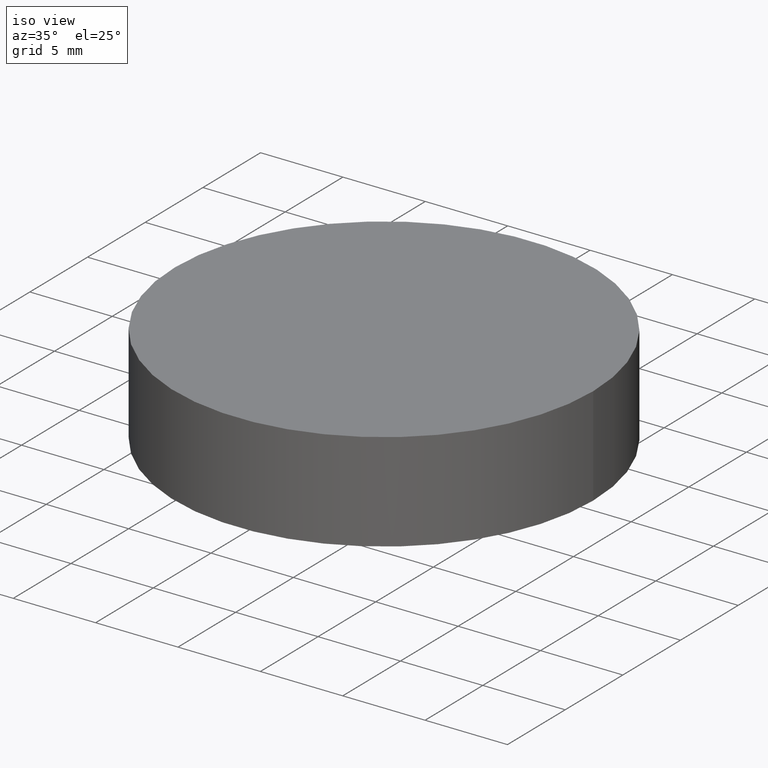
[diagram: clean part render]
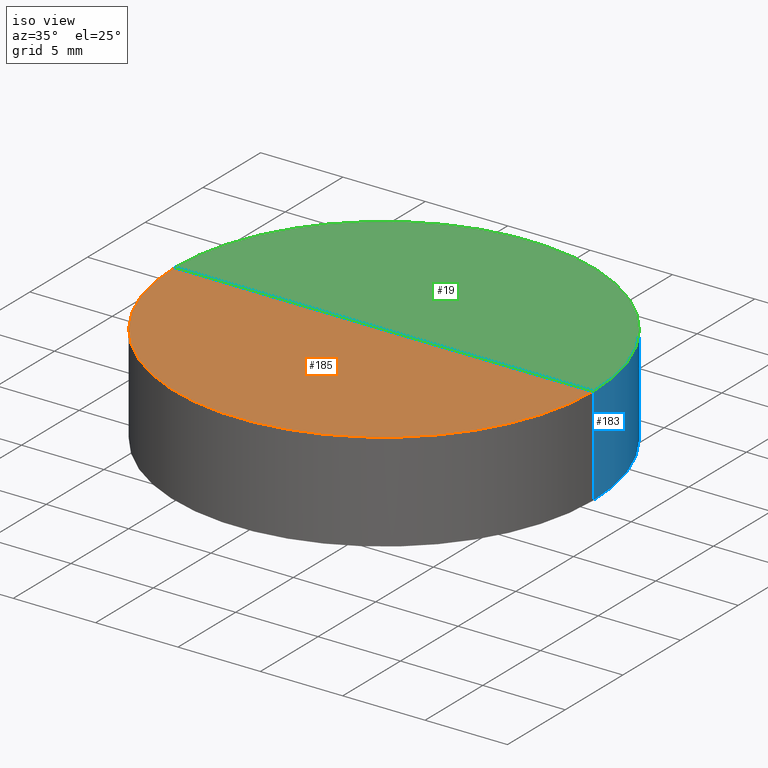
[diagram: same view with three faces highlighted in distinct colors, each labeled with its STEP entity id]
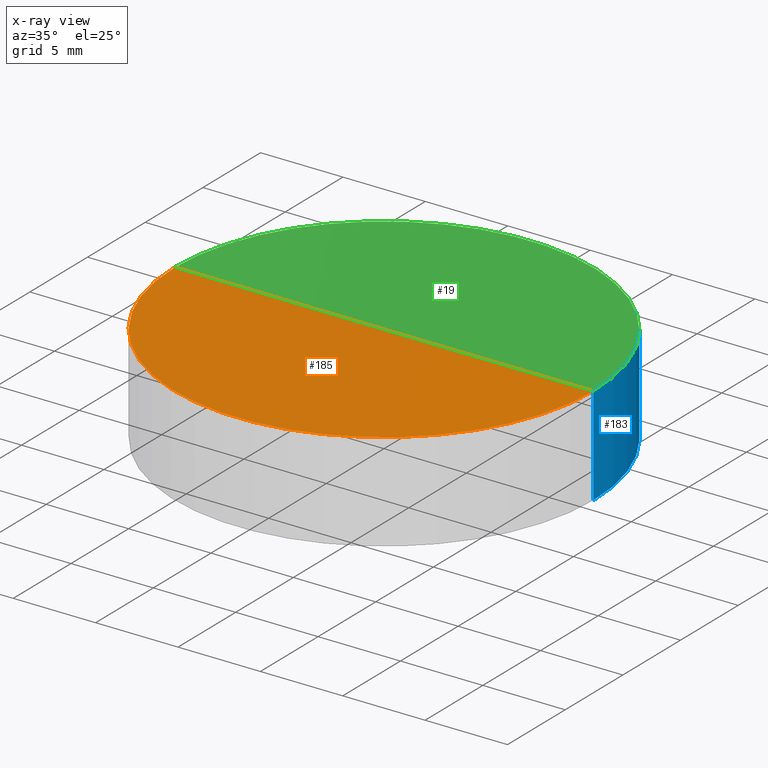
[diagram: x-ray of the same camera — body ghosted, the three highlighted faces saturated]
A machine part, iso view with three faces highlighted in distinct colors.
The next image is the same camera in x-ray (body ghosted, the three faces saturated) — at least one of them is partly hidden behind the body in this view.
Their STEP definitions:

[orange] entity #185 — the highlighted spherical surface has radius 5000 mm.
#1 = CARTESIAN_POINT ( 'NONE',  ( -12.69999999990683293, 0.000000000000000000, 6.000000000000227374 ) ) ;
#16 = DIRECTION ( 'NONE',  ( 0.000000000000000000, 0.000000000000000000, 1.000000000000000000 ) ) ;
#21 = FACE_OUTER_BOUND ( 'NONE', #98, .T. ) ;
#31 = AXIS2_PLACEMENT_3D ( 'NONE', #127, #164, #147 ) ;
#46 = ORIENTED_EDGE ( 'NONE', *, *, #86, .F. ) ;
#47 = DIRECTION ( 'NONE',  ( 1.000000000000000000, 1.224646799147353207E-16, 0.000000000000000000 ) ) ;
#59 = SPHERICAL_SURFACE ( 'NONE', #194, 5000.000000000000000 ) ;
#69 = EDGE_CURVE ( 'NONE', #141, #129, #173, .T. ) ;
#72 = DIRECTION ( 'NONE',  ( 1.000000000000000000, 0.000000000000000000, 0.000000000000000000 ) ) ;
#77 = DIRECTION ( 'NONE',  ( 0.000000000000000000, 1.000000000000000000, -0.000000000000000000 ) ) ;
#82 = CARTESIAN_POINT ( 'NONE',  ( 6.140921104957897114E-13, 0.000000000000000000, 5005.983870973986086 ) ) ;
#86 = EDGE_CURVE ( 'NONE', #116, #129, #132, .T. ) ;
#93 = CIRCLE ( 'NONE', #31, 12.69999999990744755 ) ;
#96 = ORIENTED_EDGE ( 'NONE', *, *, #114, .F. ) ;
#97 = CARTESIAN_POINT ( 'NONE',  ( 12.69999999990806039, 1.555301434911509121E-15, 6.000000000000227374 ) ) ;
#98 = EDGE_LOOP ( 'NONE', ( #46, #96, #149 ) ) ;
#102 = AXIS2_PLACEMENT_3D ( 'NONE', #181, #77, #16 ) ;
#114 = EDGE_CURVE ( 'NONE', #141, #116, #93, .T. ) ;
#116 = VERTEX_POINT ( 'NONE', #1 ) ;
#121 = CARTESIAN_POINT ( 'NONE',  ( 6.140921104957897114E-13, 0.000000000000000000, 5005.983870973986086 ) ) ;
#127 = CARTESIAN_POINT ( 'NONE',  ( 6.140921104957897114E-13, 0.000000000000000000, 6.000000000000227374 ) ) ;
#129 = VERTEX_POINT ( 'NONE', #199 ) ;
#132 = CIRCLE ( 'NONE', #138, 5000.000000000000000 ) ;
#138 = AXIS2_PLACEMENT_3D ( 'NONE', #82, #201, #47 ) ;
#141 = VERTEX_POINT ( 'NONE', #97 ) ;
#147 = DIRECTION ( 'NONE',  ( 1.000000000000000000, 0.000000000000000000, 0.000000000000000000 ) ) ;
#149 = ORIENTED_EDGE ( 'NONE', *, *, #69, .T. ) ;
#164 = DIRECTION ( 'NONE',  ( -0.000000000000000000, -0.000000000000000000, -1.000000000000000000 ) ) ;
#171 = DIRECTION ( 'NONE',  ( 0.000000000000000000, -1.000000000000000000, -0.000000000000000000 ) ) ;
#173 = CIRCLE ( 'NONE', #102, 4999.999999999999091 ) ;
#181 = CARTESIAN_POINT ( 'NONE',  ( 6.140921104957897114E-13, 0.000000000000000000, 5005.983870973986086 ) ) ;
#185 = ADVANCED_FACE ( 'NONE', ( #21 ), #59, .F. ) ;
#194 = AXIS2_PLACEMENT_3D ( 'NONE', #121, #171, #72 ) ;
#199 = CARTESIAN_POINT ( 'NONE',  ( 9.202538102826278847E-13, 0.000000000000000000, 5.983870973985894182 ) ) ;
#201 = DIRECTION ( 'NONE',  ( 1.224646799147353207E-16, -1.000000000000000000, 0.000000000000000000 ) ) ;

[blue] entity #183 — the highlighted cylindrical surface (partial cylindrical patch) has radius 12.7 mm, axis along (-0, -0, -1).
#1 = CARTESIAN_POINT ( 'NONE',  ( -12.69999999990683293, 0.000000000000000000, 6.000000000000227374 ) ) ;
#3 = ORIENTED_EDGE ( 'NONE', *, *, #137, .T. ) ;
#4 = CIRCLE ( 'NONE', #120, 12.69999999999999929 ) ;
#12 = CARTESIAN_POINT ( 'NONE',  ( 0.000000000000000000, 0.000000000000000000, 0.000000000000000000 ) ) ;
#14 = DIRECTION ( 'NONE',  ( -0.000000000000000000, -0.000000000000000000, -1.000000000000000000 ) ) ;
#15 = CARTESIAN_POINT ( 'NONE',  ( -12.69999999999999929, 0.000000000000000000, 0.000000000000000000 ) ) ;
#18 = ORIENTED_EDGE ( 'NONE', *, *, #119, .F. ) ;
#24 = EDGE_CURVE ( 'NONE', #109, #83, #4, .T. ) ;
#25 = DIRECTION ( 'NONE',  ( -1.000000000000000000, 0.000000000000000000, 0.000000000000000000 ) ) ;
#27 = CIRCLE ( 'NONE', #154, 12.69999999990744755 ) ;
#36 = ORIENTED_EDGE ( 'NONE', *, *, #192, .T. ) ;
#43 = CARTESIAN_POINT ( 'NONE',  ( 12.69999999999999929, 1.555301434917138433E-15, 6.000000000000000000 ) ) ;
#48 = AXIS2_PLACEMENT_3D ( 'NONE', #188, #57, #25 ) ;
#50 = ORIENTED_EDGE ( 'NONE', *, *, #24, .T. ) ;
#51 = DIRECTION ( 'NONE',  ( -0.000000000000000000, -0.000000000000000000, -1.000000000000000000 ) ) ;
#54 = DIRECTION ( 'NONE',  ( -0.000000000000000000, -0.000000000000000000, -1.000000000000000000 ) ) ;
#57 = DIRECTION ( 'NONE',  ( -0.000000000000000000, -0.000000000000000000, -1.000000000000000000 ) ) ;
#66 = DIRECTION ( 'NONE',  ( 1.000000000000000000, 0.000000000000000000, 0.000000000000000000 ) ) ;
#67 = DIRECTION ( 'NONE',  ( 0.000000000000000000, 0.000000000000000000, 1.000000000000000000 ) ) ;
#83 = VERTEX_POINT ( 'NONE', #15 ) ;
#84 = VECTOR ( 'NONE', #54, 1000.000000000000000 ) ;
#88 = LINE ( 'NONE', #43, #84 ) ;
#92 = FACE_OUTER_BOUND ( 'NONE', #184, .T. ) ;
#97 = CARTESIAN_POINT ( 'NONE',  ( 12.69999999990806039, 1.555301434911509121E-15, 6.000000000000227374 ) ) ;
#109 = VERTEX_POINT ( 'NONE', #166 ) ;
#113 = DIRECTION ( 'NONE',  ( 1.000000000000000000, 0.000000000000000000, 0.000000000000000000 ) ) ;
#116 = VERTEX_POINT ( 'NONE', #1 ) ;
#119 = EDGE_CURVE ( 'NONE', #116, #83, #182, .T. ) ;
#120 = AXIS2_PLACEMENT_3D ( 'NONE', #12, #67, #66 ) ;
#137 = EDGE_CURVE ( 'NONE', #116, #141, #27, .T. ) ;
#141 = VERTEX_POINT ( 'NONE', #97 ) ;
#142 = CARTESIAN_POINT ( 'NONE',  ( 6.140921104957897114E-13, 0.000000000000000000, 6.000000000000227374 ) ) ;
#154 = AXIS2_PLACEMENT_3D ( 'NONE', #142, #51, #113 ) ;
#166 = CARTESIAN_POINT ( 'NONE',  ( 12.69999999999999929, 1.555301434917138433E-15, 0.000000000000000000 ) ) ;
#167 = CARTESIAN_POINT ( 'NONE',  ( -12.69999999999999929, 0.000000000000000000, 6.000000000000000000 ) ) ;
#182 = LINE ( 'NONE', #167, #189 ) ;
#183 = ADVANCED_FACE ( 'NONE', ( #92 ), #198, .T. ) ;
#184 = EDGE_LOOP ( 'NONE', ( #3, #36, #50, #18 ) ) ;
#188 = CARTESIAN_POINT ( 'NONE',  ( 0.000000000000000000, 0.000000000000000000, 6.000000000000000000 ) ) ;
#189 = VECTOR ( 'NONE', #14, 1000.000000000000000 ) ;
#192 = EDGE_CURVE ( 'NONE', #141, #109, #88, .T. ) ;
#198 = CYLINDRICAL_SURFACE ( 'NONE', #48, 12.69999999999999929 ) ;

[green] entity #19 — the highlighted spherical surface has radius 5000 mm.
#1 = CARTESIAN_POINT ( 'NONE',  ( -12.69999999990683293, 0.000000000000000000, 6.000000000000227374 ) ) ;
#16 = DIRECTION ( 'NONE',  ( 0.000000000000000000, 0.000000000000000000, 1.000000000000000000 ) ) ;
#19 = ADVANCED_FACE ( 'NONE', ( #111 ), #112, .F. ) ;
#27 = CIRCLE ( 'NONE', #154, 12.69999999990744755 ) ;
#37 = ORIENTED_EDGE ( 'NONE', *, *, #69, .F. ) ;
#47 = DIRECTION ( 'NONE',  ( 1.000000000000000000, 1.224646799147353207E-16, 0.000000000000000000 ) ) ;
#51 = DIRECTION ( 'NONE',  ( -0.000000000000000000, -0.000000000000000000, -1.000000000000000000 ) ) ;
#52 = ORIENTED_EDGE ( 'NONE', *, *, #86, .T. ) ;
#68 = EDGE_LOOP ( 'NONE', ( #133, #52, #37 ) ) ;
#69 = EDGE_CURVE ( 'NONE', #141, #129, #173, .T. ) ;
#77 = DIRECTION ( 'NONE',  ( 0.000000000000000000, 1.000000000000000000, -0.000000000000000000 ) ) ;
#82 = CARTESIAN_POINT ( 'NONE',  ( 6.140921104957897114E-13, 0.000000000000000000, 5005.983870973986086 ) ) ;
#86 = EDGE_CURVE ( 'NONE', #116, #129, #132, .T. ) ;
#97 = CARTESIAN_POINT ( 'NONE',  ( 12.69999999990806039, 1.555301434911509121E-15, 6.000000000000227374 ) ) ;
#102 = AXIS2_PLACEMENT_3D ( 'NONE', #181, #77, #16 ) ;
#111 = FACE_OUTER_BOUND ( 'NONE', #68, .T. ) ;
#112 = SPHERICAL_SURFACE ( 'NONE', #148, 5000.000000000000000 ) ;
#113 = DIRECTION ( 'NONE',  ( 1.000000000000000000, 0.000000000000000000, 0.000000000000000000 ) ) ;
#116 = VERTEX_POINT ( 'NONE', #1 ) ;
#128 = DIRECTION ( 'NONE',  ( 1.000000000000000000, 0.000000000000000000, 0.000000000000000000 ) ) ;
#129 = VERTEX_POINT ( 'NONE', #199 ) ;
#132 = CIRCLE ( 'NONE', #138, 5000.000000000000000 ) ;
#133 = ORIENTED_EDGE ( 'NONE', *, *, #137, .F. ) ;
#137 = EDGE_CURVE ( 'NONE', #116, #141, #27, .T. ) ;
#138 = AXIS2_PLACEMENT_3D ( 'NONE', #82, #201, #47 ) ;
#141 = VERTEX_POINT ( 'NONE', #97 ) ;
#142 = CARTESIAN_POINT ( 'NONE',  ( 6.140921104957897114E-13, 0.000000000000000000, 6.000000000000227374 ) ) ;
#144 = CARTESIAN_POINT ( 'NONE',  ( 6.140921104957897114E-13, 0.000000000000000000, 5005.983870973986086 ) ) ;
#148 = AXIS2_PLACEMENT_3D ( 'NONE', #144, #165, #128 ) ;
#154 = AXIS2_PLACEMENT_3D ( 'NONE', #142, #51, #113 ) ;
#165 = DIRECTION ( 'NONE',  ( 0.000000000000000000, -1.000000000000000000, -0.000000000000000000 ) ) ;
#173 = CIRCLE ( 'NONE', #102, 4999.999999999999091 ) ;
#181 = CARTESIAN_POINT ( 'NONE',  ( 6.140921104957897114E-13, 0.000000000000000000, 5005.983870973986086 ) ) ;
#199 = CARTESIAN_POINT ( 'NONE',  ( 9.202538102826278847E-13, 0.000000000000000000, 5.983870973985894182 ) ) ;
#201 = DIRECTION ( 'NONE',  ( 1.224646799147353207E-16, -1.000000000000000000, 0.000000000000000000 ) ) ;